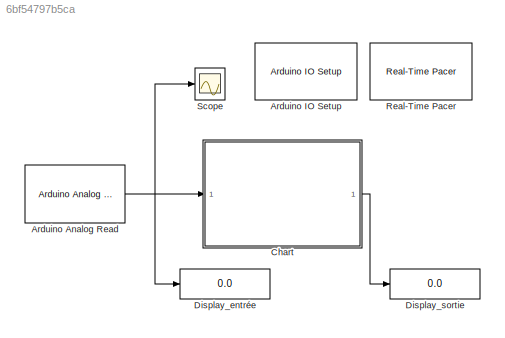
MODEL slx_6bf54797b5ca
KIND model
BLOCK [Reference] Arduino Analog Read  REF=arduino_io_lib/Arduino Analog Read
  Ports = [0, 1]
  SourceBlock = arduino_io_lib/Arduino Analog Read
  SourceType = Arduino IO Analog Read
  T = 0.2
  arduinoPin = 0
  arduinoVar = Temporary arduino variable: Arduino1
BLOCK [Reference] Arduino IO Setup  REF=arduino_io_lib/Arduino IO Setup
  Ports = []
  Priority = 3
  SourceBlock = arduino_io_lib/Arduino IO Setup
  SourceType = Arduino IO Setup
  arduinoVar = Temporary arduino variable: Arduino1
  comPort = COM49
  workspaceVarName = a
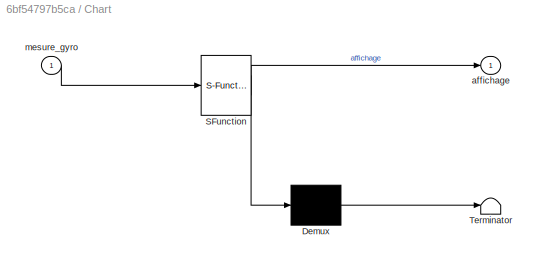
BLOCK [SubSystem] Chart
  ErrorFcn = Stateflow.Translate.translate
  FunctionWithSeparateData = off
  MaskHideContents = off
  MinAlgLoopOccurrences = off
  Opaque = off
  PermitHierarchicalResolution = ExplicitOnly
  Ports = [1, 1]
  PropExecContextOutsideSubsystem = off
  RTWSystemCode = Auto
  RequestExecContextInheritance = off
  SFBlockType = Chart
  TreatAsAtomicUnit = on
BLOCK [Demux] Chart/ Demux 
  Outputs = 1
  Ports = [1, 1]
BLOCK [S-Function] Chart/ SFunction 
  EnableBusSupport = on
  FunctionName = sf_sfun
  PortCounts = [1 2]
  Ports = [1, 2]
  Tag = Stateflow S-Function Execution_gyro_2_corrige 1
BLOCK [Terminator] Chart/ Terminator 
BLOCK [Outport] Chart/affichage
  IconDisplay = Port number
BLOCK [Inport] Chart/mesure_gyro
  IconDisplay = Port number
BLOCK [Display] Display_entrée
  Decimation = 1
  Lockdown = off
  Ports = [1]
BLOCK [Display] Display_sortie
  Decimation = 1
  Lockdown = off
  Ports = [1]
BLOCK [Reference] Real-Time Pacer  REF=arduino_io_lib/Real-Time Pacer
  Ports = []
  SourceBlock = arduino_io_lib/Real-Time Pacer
  SourceType = RealTime_Pacer
  simTimePerRealTime = 1
BLOCK [Scope] Scope
  DataFormat = StructureWithTime
  Floating = off
  NumInputPorts = 1
  Ports = [1]
  SampleTime = 0
  ShowLegends = off
  TimeRange = 10
  YMax = 620
  YMin = 410
NET Arduino Analog Read:1 -> Chart:1, Display_entrée:1, Scope:1
LINE Chart:1 -> Display_sortie:1
note: NET lines group one-source signal fan-out (src -> all destinations, sorted); 1:1 wires keep LINE
